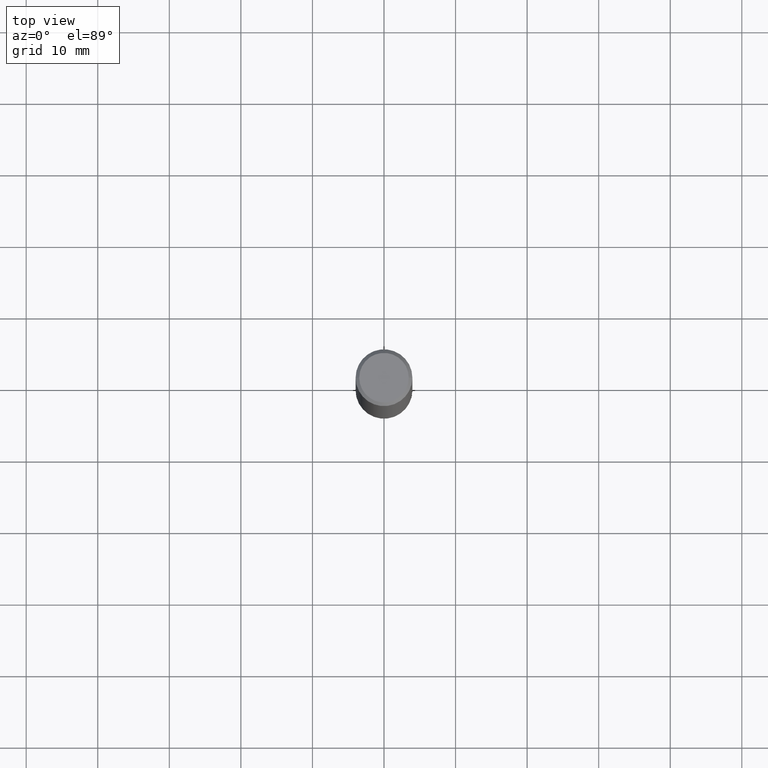
[diagram: clean part render]
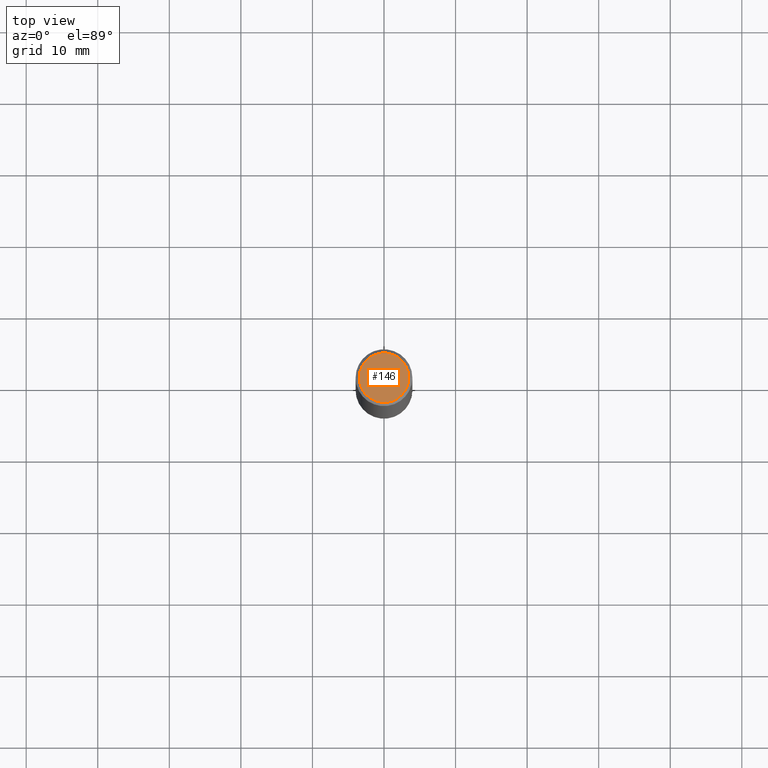
[diagram: same view with one face highlighted and labeled with its STEP entity id]
A machine part, top view. The second image highlights one B-rep face of the part: STEP entity #146.
In plain terms, the highlighted planar face has unit normal (0, -0, -1).
Its self-contained STEP definition (entity closure, byte-faithful):
#18 = EDGE_LOOP ( 'NONE', ( #398, #126 ) ) ;
#61 = CARTESIAN_POINT ( 'NONE',  ( 0.000000000000000000, 0.000000000000000000, 0.000000000000000000 ) ) ;
#110 = CARTESIAN_POINT ( 'NONE',  ( 9.514286648347494217E-16, 0.1362499999999993994, -4.757143324173764858E-16 ) ) ;
#114 = CARTESIAN_POINT ( 'NONE',  ( -0.1362499999999993994, 9.863434782231808736E-16, -6.775751096333110456E-30 ) ) ;
#126 = ORIENTED_EDGE ( 'NONE', *, *, #128, .T. ) ;
#128 = EDGE_CURVE ( 'NONE', #166, #365, #190, .T. ) ;
#146 = ADVANCED_FACE ( 'NONE', ( #371 ), #260, .F. ) ;
#147 = CIRCLE ( 'NONE', #323, 0.1362499999999993994 ) ;
#166 = VERTEX_POINT ( 'NONE', #410 ) ;
#170 = DIRECTION ( 'NONE',  ( 1.000000000000000000, -6.982962677686266711E-15, 4.876176775795935793E-29 ) ) ;
#179 = DIRECTION ( 'NONE',  ( 1.000000000000000000, -6.982962677686266711E-15, 4.876176775795935793E-29 ) ) ;
#190 = CIRCLE ( 'NONE', #297, 0.1362499999999993994 ) ;
#240 = EDGE_CURVE ( 'NONE', #365, #166, #147, .T. ) ;
#260 = PLANE ( 'NONE',  #354 ) ;
#297 = AXIS2_PLACEMENT_3D ( 'NONE', #488, #443, #179 ) ;
#323 = AXIS2_PLACEMENT_3D ( 'NONE', #61, #392, #170 ) ;
#337 = DIRECTION ( 'NONE',  ( -1.000000000000000000, 6.982962677686265922E-15, -4.876176775795935793E-29 ) ) ;
#354 = AXIS2_PLACEMENT_3D ( 'NONE', #110, #375, #337 ) ;
#365 = VERTEX_POINT ( 'NONE', #114 ) ;
#371 = FACE_OUTER_BOUND ( 'NONE', #18, .T. ) ;
#375 = DIRECTION ( 'NONE',  ( 2.438088387897960049E-29, -3.491481338843145188E-15, -1.000000000000000000 ) ) ;
#392 = DIRECTION ( 'NONE',  ( -2.445468806185136597E-29, 3.491481338843145583E-15, 1.000000000000000000 ) ) ;
#398 = ORIENTED_EDGE ( 'NONE', *, *, #240, .T. ) ;
#410 = CARTESIAN_POINT ( 'NONE',  ( 0.1362499999999993994, -1.038262645562514180E-15, 6.957025900226667049E-30 ) ) ;
#443 = DIRECTION ( 'NONE',  ( -2.445468806185136597E-29, 3.491481338843145583E-15, 1.000000000000000000 ) ) ;
#488 = CARTESIAN_POINT ( 'NONE',  ( 0.000000000000000000, 0.000000000000000000, 0.000000000000000000 ) ) ;